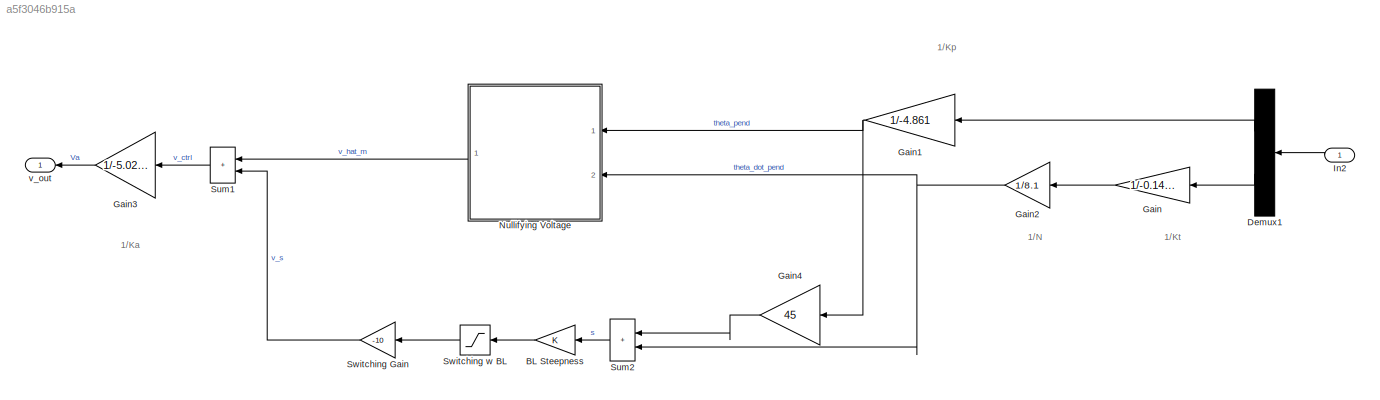
MODEL slx_a5f3046b915a
KIND model
CONFIG AbsTol = auto
CONFIG EnableMultiTasking = off
CONFIG FixedStep = auto
CONFIG MaxStep = 1e-4
CONFIG MinStep = 1e-6
CONFIG RelTol = 1e-9
CONFIG SampleTimeConstraint = Unconstrained
CONFIG SolverName = VariableStepAuto
CONFIG StartTime = 0.0
CONFIG StopTime = tsim
BLOCK [Gain] BL Steepness
  NameLocation = top
BLOCK [Demux] Demux1
  NameLocation = top
  Outputs = 2
  Ports = [1, 2]
BLOCK [Gain] Gain
  Gain = 1/-0.1433
  NameLocation = top
BLOCK [Gain] Gain1
  Gain = 1/-4.861
  NameLocation = top
BLOCK [Gain] Gain2
  Gain = 1/8.1
  NameLocation = top
BLOCK [Gain] Gain3
  Gain = 1/-5.0204
  NameLocation = top
BLOCK [Gain] Gain4
  Gain = 45
  NameLocation = top
BLOCK [Inport] In2
  NameLocation = top
  SampleTime = .01
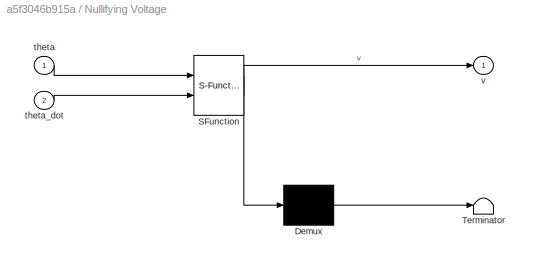
BLOCK [SubSystem] Nullifying Voltage
  ErrorFcn = Stateflow.Translate.translate
  NameLocation = top
  PermitHierarchicalResolution = ExplicitOnly
  Ports = [2, 1]
  RequestExecContextInheritance = off
  SFBlockType = MATLAB Function
  TreatAsAtomicUnit = on
BLOCK [Demux] Nullifying Voltage/ Demux 
  Outputs = 1
  Ports = [1, 1]
BLOCK [S-Function] Nullifying Voltage/ SFunction 
  EnableBusSupport = on
  FunctionName = sf_sfun
  PortCounts = [2 2]
  Ports = [2, 2]
  SFcnIsStateOwnerBlock = off
  SFunctionDeploymentMode = off
  Tag = Stateflow S-Function 3
BLOCK [Terminator] Nullifying Voltage/ Terminator 
BLOCK [Inport] Nullifying Voltage/theta
BLOCK [Inport] Nullifying Voltage/theta_dot
  Port = 2
BLOCK [Outport] Nullifying Voltage/v
BLOCK [Sum] Sum1
  IconShape = rectangular
  NameLocation = top
  Ports = [2, 1]
BLOCK [Sum] Sum2
  IconShape = rectangular
  Inputs = |++
  NameLocation = top
  Ports = [2, 1]
BLOCK [Gain] Switching Gain
  Gain = -10
  NameLocation = top
BLOCK [Saturate] Switching w BL
  LowerLimit = -1
  NameLocation = top
  UpperLimit = 1
BLOCK [Outport] v_out
  NameLocation = top
ANNOTATION (root): 1/Ka
ANNOTATION (root): 1/Kp
ANNOTATION (root): 1/Kt
ANNOTATION (root): 1/N
LINE BL Steepness:1 -> Switching w BL:1
LINE Demux1:1 -> Gain1:1
LINE Demux1:2 -> Gain:1
NET Gain1:1 -> Gain4:1, Nullifying Voltage:1
NET Gain2:1 -> Nullifying Voltage:2, Sum2:2
LINE Gain3:1 -> v_out:1
LINE Gain4:1 -> Sum2:1
LINE Gain:1 -> Gain2:1
LINE In2:1 -> Demux1:1
LINE Nullifying Voltage:1 -> Sum1:1
LINE Sum1:1 -> Gain3:1
LINE Sum2:1 -> BL Steepness:1
LINE Switching Gain:1 -> Sum1:2
LINE Switching w BL:1 -> Switching Gain:1
note: NET lines group one-source signal fan-out (src -> all destinations, sorted); 1:1 wires keep LINE
CHART Nullifying Voltage states=1 transitions=1
  STATE_LABEL 'eML_blk_kernel()'
  STATE_LABEL 'SCRIPT:\nfunction v = fcn(theta, theta_dot)\n\nlambda_n = 45;\nv = 0.3501*theta_dot - 1.0684*sign(theta_dot) - 0.6600*sin(theta)...\n    - 0.1144*lambda_n*theta_dot;'
CHART  states=0 transitions=0
